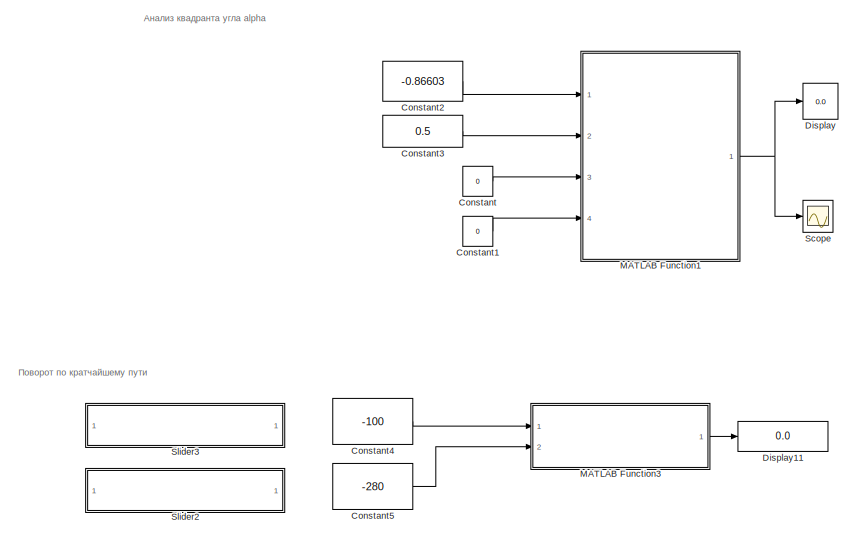
[diagram: root canvas - part 1/2, top center region]
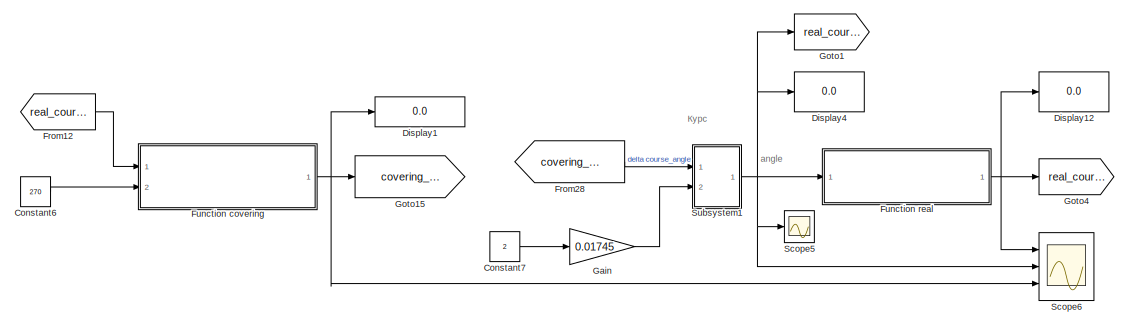
[diagram: root canvas - part 2/2, full width, bottom band]
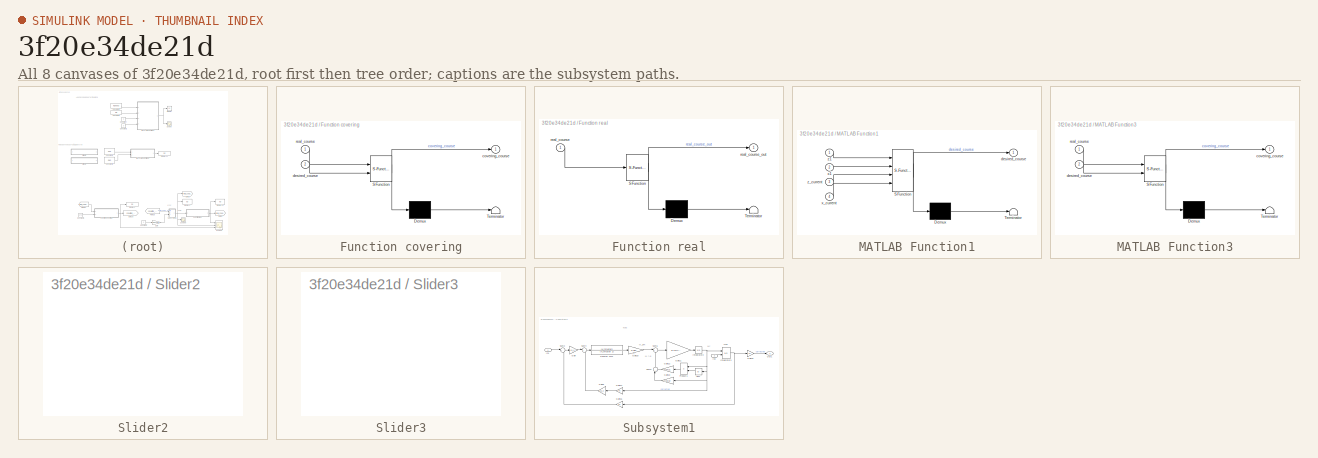
[diagram: thumbnail index - all 8 canvases of the model, root first then tree order]
MODEL slx_3f20e34de21d
KIND model
CONFIG AbsTol = auto
CONFIG EnableMultiTasking = off
CONFIG FixedStep = auto
CONFIG MaxStep = auto
CONFIG MinStep = auto
CONFIG RelTol = 1e-3
CONFIG SampleTimeConstraint = Unconstrained
CONFIG Solver = VariableStepAuto
CONFIG SolverName = VariableStepAuto
CONFIG StartTime = 0.0
CONFIG StopTime = 3
BLOCK [Constant] Constant
  Value = 0
BLOCK [Constant] Constant1
  Value = 0
BLOCK [Constant] Constant2
  Value = -0.86603
BLOCK [Constant] Constant3
  Value = 0.5
BLOCK [Constant] Constant4
  Value = -100
BLOCK [Constant] Constant5
  Value = -280
BLOCK [Constant] Constant6
  Value = 270
BLOCK [Constant] Constant7
  Value = 2
BLOCK [Display] Display
  Decimation = 1
  Ports = [1]
BLOCK [Display] Display1
  Decimation = 1
  Ports = [1]
BLOCK [Display] Display11
  Decimation = 1
  Ports = [1]
BLOCK [Display] Display12
  Decimation = 1
  Ports = [1]
BLOCK [Display] Display4
  Decimation = 1
  Ports = [1]
BLOCK [From] From12
  GotoTag = real_course
BLOCK [From] From28
  GotoTag = covering_course
BLOCK [SubSystem] Function covering
  ErrorFcn = Stateflow.Translate.translate
  PermitHierarchicalResolution = ExplicitOnly
  Ports = [2, 1]
  RequestExecContextInheritance = off
  SFBlockType = MATLAB Function
  TreatAsAtomicUnit = on
  Variant = off
BLOCK [Demux] Function covering/ Demux 
  Outputs = 1
  Ports = [1, 1]
BLOCK [S-Function] Function covering/ SFunction 
  EnableBusSupport = on
  FunctionName = sf_sfun
  PortCounts = [2 2]
  Ports = [2, 2]
  SFcnIsStateOwnerBlock = off
  SFunctionDeploymentMode = off
  Tag = Stateflow S-Function test_5 1
BLOCK [Terminator] Function covering/ Terminator 
BLOCK [Outport] Function covering/covering_course
  IconDisplay = Port number
BLOCK [Inport] Function covering/desired_course
  IconDisplay = Port number
  Port = 2
BLOCK [Inport] Function covering/real_course
  IconDisplay = Port number
BLOCK [SubSystem] Function real
  ErrorFcn = Stateflow.Translate.translate
  PermitHierarchicalResolution = ExplicitOnly
  Ports = [1, 1]
  RequestExecContextInheritance = off
  SFBlockType = MATLAB Function
  TreatAsAtomicUnit = on
  Variant = off
BLOCK [Demux] Function real/ Demux 
  Outputs = 1
  Ports = [1, 1]
BLOCK [S-Function] Function real/ SFunction 
  EnableBusSupport = on
  FunctionName = sf_sfun
  PortCounts = [1 2]
  Ports = [1, 2]
  SFcnIsStateOwnerBlock = off
  SFunctionDeploymentMode = off
  Tag = Stateflow S-Function test_5 7
BLOCK [Terminator] Function real/ Terminator 
BLOCK [Inport] Function real/real_course
  IconDisplay = Port number
BLOCK [Outport] Function real/real_course_out
  IconDisplay = Port number
BLOCK [Gain] Gain
  Gain = 0.01745
  OutDataTypeStr = Inherit: Inherit via internal rule
  ParamDataTypeStr = Inherit: Inherit via internal rule
  SaturateOnIntegerOverflow = off
BLOCK [Goto] Goto1
  GotoTag = real_course
BLOCK [Goto] Goto15
  GotoTag = covering_course
BLOCK [Goto] Goto4
  Commented = on
  GotoTag = real_course
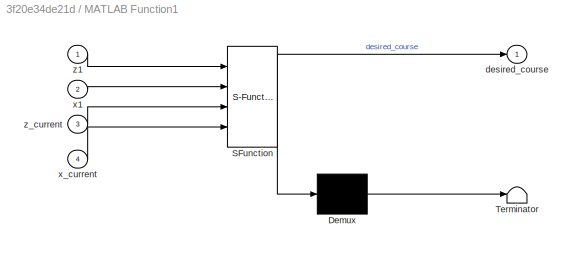
BLOCK [SubSystem] MATLAB Function1
  ErrorFcn = Stateflow.Translate.translate
  PermitHierarchicalResolution = ExplicitOnly
  Ports = [4, 1]
  RequestExecContextInheritance = off
  SFBlockType = MATLAB Function
  TreatAsAtomicUnit = on
  Variant = off
BLOCK [Demux] MATLAB Function1/ Demux 
  Outputs = 1
  Ports = [1, 1]
BLOCK [S-Function] MATLAB Function1/ SFunction 
  EnableBusSupport = on
  FunctionName = sf_sfun
  PortCounts = [4 2]
  Ports = [4, 2]
  SFcnIsStateOwnerBlock = off
  SFunctionDeploymentMode = off
  Tag = Stateflow S-Function test_5 2
BLOCK [Terminator] MATLAB Function1/ Terminator 
BLOCK [Outport] MATLAB Function1/desired_course
  IconDisplay = Port number
BLOCK [Inport] MATLAB Function1/x1
  IconDisplay = Port number
  Port = 2
BLOCK [Inport] MATLAB Function1/x_current
  IconDisplay = Port number
  Port = 4
BLOCK [Inport] MATLAB Function1/z1
  IconDisplay = Port number
BLOCK [Inport] MATLAB Function1/z_current
  IconDisplay = Port number
  Port = 3
BLOCK [SubSystem] MATLAB Function3
  ErrorFcn = Stateflow.Translate.translate
  PermitHierarchicalResolution = ExplicitOnly
  Ports = [2, 1]
  RequestExecContextInheritance = off
  SFBlockType = MATLAB Function
  TreatAsAtomicUnit = on
  Variant = off
BLOCK [Demux] MATLAB Function3/ Demux 
  Outputs = 1
  Ports = [1, 1]
BLOCK [S-Function] MATLAB Function3/ SFunction 
  EnableBusSupport = on
  FunctionName = sf_sfun
  PortCounts = [2 2]
  Ports = [2, 2]
  SFcnIsStateOwnerBlock = off
  SFunctionDeploymentMode = off
  Tag = Stateflow S-Function test_5 6
BLOCK [Terminator] MATLAB Function3/ Terminator 
BLOCK [Outport] MATLAB Function3/covering_course
  IconDisplay = Port number
BLOCK [Inport] MATLAB Function3/desired_course
  IconDisplay = Port number
  Port = 2
BLOCK [Inport] MATLAB Function3/real_course
  IconDisplay = Port number
BLOCK [Scope] Scope
  NumInputPorts = 1
  Ports = [1]
  ScopeSpecificationString = Simulink.scopes.TimeScopeBlockCfg('CurrentConfiguration', extmgr.ConfigurationSet(extmgr.Configuration('Core','General UI',true),extmgr.Configuration('Core','Source UI',true),extmgr.Configuration('Sources','WiredSimulink',true),extmgr.Configuration('Visuals','Time Domain',true),extmgr.Configuration('Tools','Plot Navigation',true),extmgr.Configuration('Tools','Measurements',true)),'Version','2017b'...<+1ch>
BLOCK [Scope] Scope5
  NumInputPorts = 1
  Ports = [1]
  ScopeSpecificationString = Simulink.scopes.TimeScopeBlockCfg('CurrentConfiguration', extmgr.ConfigurationSet(extmgr.Configuration('Core','General UI',true),extmgr.Configuration('Core','Source UI',true),extmgr.Configuration('Sources','WiredSimulink',true,'DataLoggingVariableName','ScopeData1'),extmgr.Configuration('Visuals','Time Domain',true,'SerializedDisplays',{struct('MinYLimReal','-33.74257','MaxYLimReal','76.80335','YL...<+1449ch>
BLOCK [Scope] Scope6
  NumInputPorts = 3
  Ports = [3]
  ScopeSpecificationString = Simulink.scopes.TimeScopeBlockCfg('CurrentConfiguration', extmgr.ConfigurationSet(extmgr.Configuration('Core','General UI',true),extmgr.Configuration('Core','Source UI',true),extmgr.Configuration('Sources','WiredSimulink',true,'DataLoggingVariableName','ScopeData2'),extmgr.Configuration('Visuals','Time Domain',true,'SerializedDisplays',{struct('MinYLimReal','-146.00934','MaxYLimReal','414.08404','...<+1917ch>
BLOCK [SubSystem] Slider2
  DialogController = hmiCreateDDGDialog
  IsWebBlock = on
  MaskHideContents = on
  Ports = []
  RequestExecContextInheritance = off
  Variant = off
BLOCK [SubSystem] Slider3
  DialogController = hmiCreateDDGDialog
  IsWebBlock = on
  MaskHideContents = on
  Ports = []
  RequestExecContextInheritance = off
  Variant = off
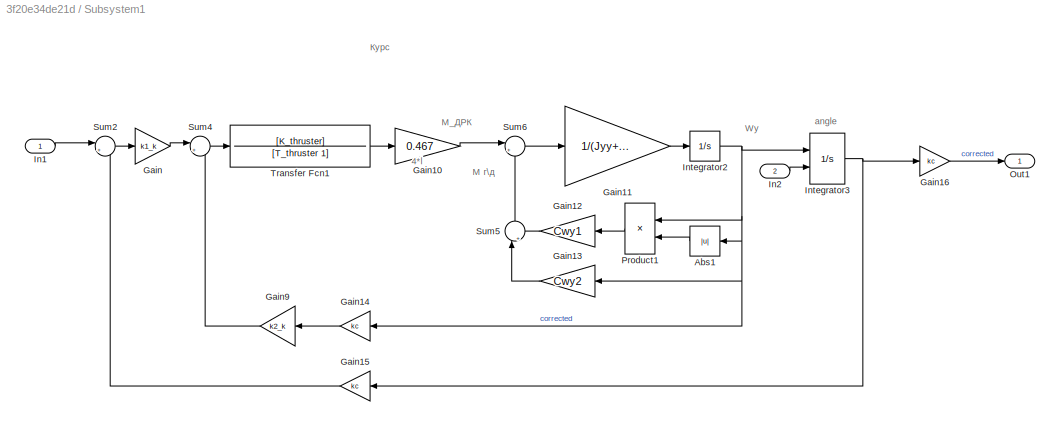
BLOCK [SubSystem] Subsystem1
  Ports = [2, 1]
  RequestExecContextInheritance = off
  Variant = off
BLOCK [Abs] Subsystem1/Abs1
  SaturateOnIntegerOverflow = off
BLOCK [Gain] Subsystem1/Gain
  Gain = k1_k
  OutDataTypeStr = Inherit: Inherit via internal rule
  ParamDataTypeStr = Inherit: Inherit via internal rule
  SaturateOnIntegerOverflow = off
BLOCK [Gain] Subsystem1/Gain10
  Gain = 0.467
  OutDataTypeStr = Inherit: Inherit via internal rule
  ParamDataTypeStr = Inherit: Inherit via internal rule
  SaturateOnIntegerOverflow = off
BLOCK [Gain] Subsystem1/Gain11
  Gain = 1/(Jyy+lambda55)
  OutDataTypeStr = Inherit: Inherit via internal rule
  ParamDataTypeStr = Inherit: Inherit via internal rule
  SaturateOnIntegerOverflow = off
BLOCK [Gain] Subsystem1/Gain12
  Gain = Cwy1
  OutDataTypeStr = Inherit: Inherit via internal rule
  ParamDataTypeStr = Inherit: Inherit via internal rule
  SaturateOnIntegerOverflow = off
BLOCK [Gain] Subsystem1/Gain13
  Gain = Cwy2
  OutDataTypeStr = Inherit: Inherit via internal rule
  ParamDataTypeStr = Inherit: Inherit via internal rule
  SaturateOnIntegerOverflow = off
BLOCK [Gain] Subsystem1/Gain14
  Gain = kc
  OutDataTypeStr = Inherit: Inherit via internal rule
  ParamDataTypeStr = Inherit: Inherit via internal rule
  SaturateOnIntegerOverflow = off
BLOCK [Gain] Subsystem1/Gain15
  Gain = kc
  OutDataTypeStr = Inherit: Inherit via internal rule
  ParamDataTypeStr = Inherit: Inherit via internal rule
  SaturateOnIntegerOverflow = off
BLOCK [Gain] Subsystem1/Gain16
  Gain = kc
  OutDataTypeStr = Inherit: Inherit via internal rule
  ParamDataTypeStr = Inherit: Inherit via internal rule
  SaturateOnIntegerOverflow = off
BLOCK [Gain] Subsystem1/Gain9
  Gain = k2_k
  OutDataTypeStr = Inherit: Inherit via internal rule
  ParamDataTypeStr = Inherit: Inherit via internal rule
  SaturateOnIntegerOverflow = off
BLOCK [Inport] Subsystem1/In1
  IconDisplay = Port number
BLOCK [Inport] Subsystem1/In2
  IconDisplay = Port number
  Port = 2
BLOCK [Integrator] Subsystem1/Integrator2
  Ports = [1, 1]
BLOCK [Integrator] Subsystem1/Integrator3
  InitialCondition = 1.5708
  InitialConditionSource = external
  Ports = [2, 1]
BLOCK [Outport] Subsystem1/Out1
  IconDisplay = Port number
BLOCK [Product] Subsystem1/Product1
  InputSameDT = off
  OutDataTypeStr = Inherit: Inherit via internal rule
  Ports = [2, 1]
  RndMeth = Floor
  SaturateOnIntegerOverflow = off
BLOCK [Sum] Subsystem1/Sum2
  IconShape = round
  InputSameDT = off
  Inputs = |+-
  OutDataTypeStr = Inherit: Inherit via internal rule
  Ports = [2, 1]
  SaturateOnIntegerOverflow = off
BLOCK [Sum] Subsystem1/Sum4
  IconShape = round
  InputSameDT = off
  Inputs = |+-
  OutDataTypeStr = Inherit: Inherit via internal rule
  Ports = [2, 1]
  SaturateOnIntegerOverflow = off
BLOCK [Sum] Subsystem1/Sum5
  IconShape = round
  InputSameDT = off
  Inputs = |++
  OutDataTypeStr = Inherit: Inherit via internal rule
  Ports = [2, 1]
  SaturateOnIntegerOverflow = off
BLOCK [Sum] Subsystem1/Sum6
  IconShape = round
  InputSameDT = off
  Inputs = |+-
  OutDataTypeStr = Inherit: Inherit via internal rule
  Ports = [2, 1]
  SaturateOnIntegerOverflow = off
BLOCK [TransferFcn] Subsystem1/Transfer Fcn1
  Denominator = [T_thruster 1]
  Numerator = [K_thruster]
ANNOTATION (root): Курс
ANNOTATION (root): angle
ANNOTATION (root): Анализ квадранта угла alpha
ANNOTATION (root): Поворот по кратчайшему пути
ANNOTATION Subsystem1: 4*l
ANNOTATION Subsystem1: Курс
ANNOTATION Subsystem1: M г\д
ANNOTATION Subsystem1: M_ДРК
ANNOTATION Subsystem1: Wy
ANNOTATION Subsystem1: angle
LINE Constant1:1 -> MATLAB Function1:4
LINE Constant2:1 -> MATLAB Function1:1
LINE Constant3:1 -> MATLAB Function1:2
LINE Constant4:1 -> MATLAB Function3:1
LINE Constant5:1 -> MATLAB Function3:2
LINE Constant6:1 -> Function covering:2
LINE Constant7:1 -> Gain:1
LINE Constant:1 -> MATLAB Function1:3
LINE From12:1 -> Function covering:1
LINE From28:1 -> Subsystem1:1
NET Function covering:1 -> Display1:1, Goto15:1, Scope6:3
NET Function real:1 -> Display12:1, Goto4:1, Scope6:1
LINE Gain:1 -> Subsystem1:2
NET MATLAB Function1:1 -> Display:1, Scope:1
LINE MATLAB Function3:1 -> Display11:1
LINE Subsystem1/Abs1:1 -> Subsystem1/Product1:2
LINE Subsystem1/Gain10:1 -> Subsystem1/Sum6:1
LINE Subsystem1/Gain11:1 -> Subsystem1/Integrator2:1
LINE Subsystem1/Gain12:1 -> Subsystem1/Sum5:2
LINE Subsystem1/Gain13:1 -> Subsystem1/Sum5:1
LINE Subsystem1/Gain14:1 -> Subsystem1/Gain9:1
LINE Subsystem1/Gain15:1 -> Subsystem1/Sum2:2
LINE Subsystem1/Gain16:1 -> Subsystem1/Out1:1
LINE Subsystem1/Gain9:1 -> Subsystem1/Sum4:2
LINE Subsystem1/Gain:1 -> Subsystem1/Sum4:1
LINE Subsystem1/In1:1 -> Subsystem1/Sum2:1
LINE Subsystem1/In2:1 -> Subsystem1/Integrator3:2
NET Subsystem1/Integrator2:1 -> Subsystem1/Abs1:1, Subsystem1/Gain13:1, Subsystem1/Gain14:1, Subsystem1/Integrator3:1, Subsystem1/Product1:1
NET Subsystem1/Integrator3:1 -> Subsystem1/Gain15:1, Subsystem1/Gain16:1
LINE Subsystem1/Product1:1 -> Subsystem1/Gain12:1
LINE Subsystem1/Sum2:1 -> Subsystem1/Gain:1
LINE Subsystem1/Sum4:1 -> Subsystem1/Transfer Fcn1:1
LINE Subsystem1/Sum5:1 -> Subsystem1/Sum6:2
LINE Subsystem1/Sum6:1 -> Subsystem1/Gain11:1
LINE Subsystem1/Transfer Fcn1:1 -> Subsystem1/Gain10:1
NET Subsystem1:1 -> Display4:1, Function real:1, Goto1:1, Scope5:1, Scope6:2
note: NET lines group one-source signal fan-out (src -> all destinations, sorted); 1:1 wires keep LINE
CHART Function covering states=1 transitions=1
  STATE_LABEL 'eML_blk_kernel()'
  STATE_LABEL 'SCRIPT:\nfunction covering_course   = fcn(real_course, desired_course)\n\n    % предстоит повернуться более чем на 180 градусов\n    %if abs(desired_course - real_course) > 180\n    %    covering_course = desired_course - 360 - real_course;\n    %elseif desired_course < real_course\n    %    covering_course = desired_course - real_course;\n    %else    \n    %    covering_course = desired_course;\n    %end\n...<+369ch>'
CHART MATLAB Function1 states=1 transitions=1
  STATE_LABEL 'eML_blk_kernel()'
  STATE_LABEL 'SCRIPT:\nfunction desired_course = fcn(z1, x1, z_current, x_current)\n\ndelta_x = x1 - x_current;\ndelta_z = z1 - z_current;\n\n%1\nif (delta_x >= 0) && (delta_z >= 0)\n    desired_course = 57.2958*atan(delta_z / delta_x);\n%2    \nelseif (delta_x >= 0) && (delta_z < 0)\n    desired_course = 360 - 57.2958*atan( abs(delta_z) / delta_x);\n%3    \nelseif (delta_x < 0) && (delta_z < 0)    \n    desired_course = 180...<+208ch>'
CHART MATLAB Function3 states=1 transitions=1
  STATE_LABEL 'eML_blk_kernel()'
  STATE_LABEL 'SCRIPT:\nfunction covering_course   = fcn(real_course, desired_course)\n\n    % Поворот по кратчайшему пути\n    if abs(desired_course - real_course) > 180\n        covering_course = desired_course - 360 - real_course;\n    else\n        covering_course = desired_course;\n    end\n\nend\n\n'
CHART Function real states=1 transitions=1
  STATE_LABEL 'eML_blk_kernel()'
  STATE_LABEL 'SCRIPT:\nfunction real_course_out   = fcn(real_course)\n\n    % Приводим к стандарту\n    if real_course < 0\n        real_course_out = 360 - abs(real_course);\n    elseif real_course >= 360\n        real_course_out = real_course - 360;\n    else    \n        real_course_out = real_course;\n    end\n\nend\n\n'
